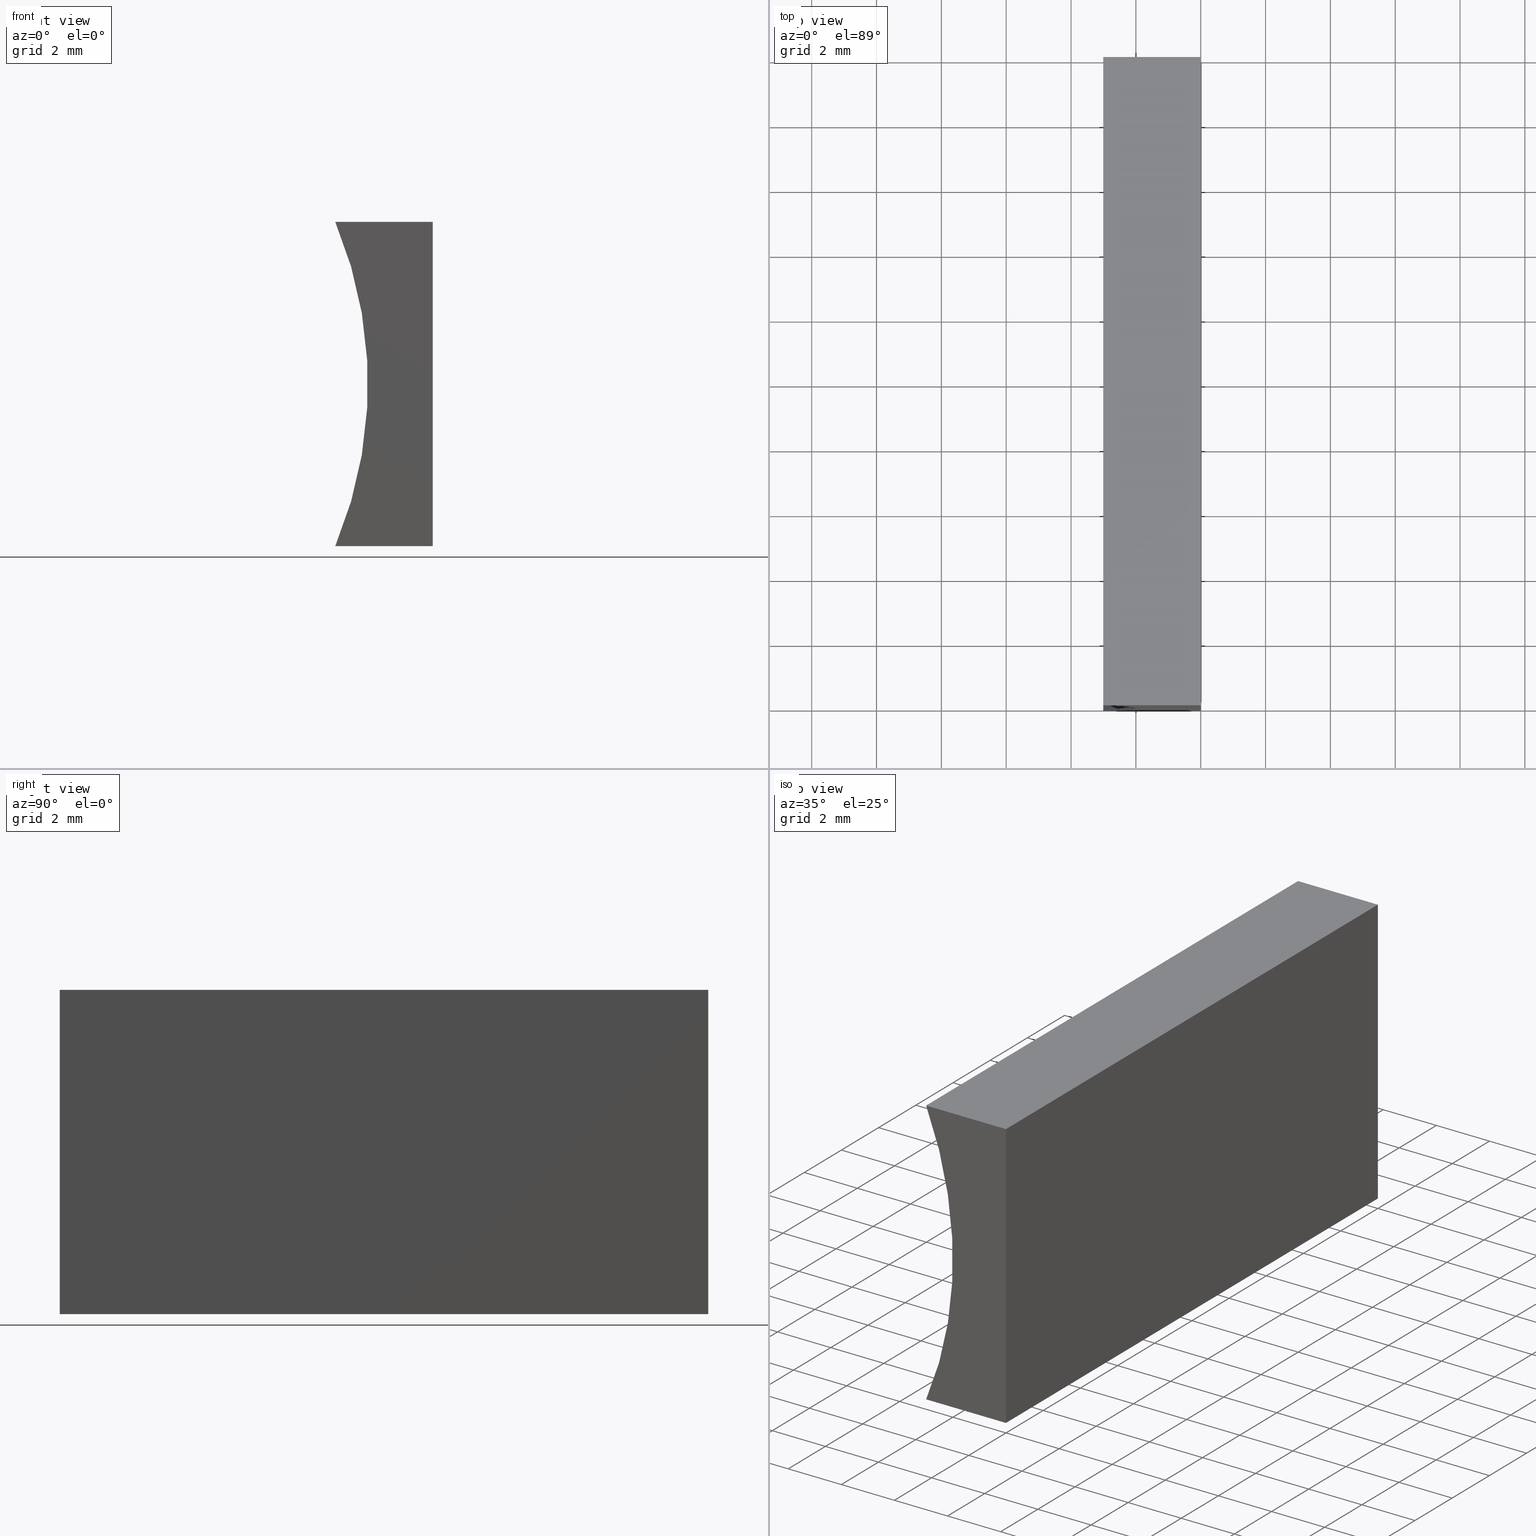
[diagram: canonical four-view strip — front | top / right | iso, engineering-drawing reading convention]
A machine part, canonical four-view strip (front | top / right | iso — engineering-drawing reading convention). The complete STEP part file that produces these views, byte-faithful:
ISO-10303-21;
HEADER;
FILE_DESCRIPTION (( 'STEP AP214' ),
    '1' );
FILE_NAME ('155343.STEP',
    '2019-06-28T02:30:09',
    ( 'user' ),
    ( '΢���й�' ),
    'SwSTEP 2.0',
    'SolidWorks 2016',
    '' );
FILE_SCHEMA (( 'AUTOMOTIVE_DESIGN' ));
ENDSEC;

DATA;
#1 = LINE ( 'NONE', #127, #135 ) ;
#2 =( LENGTH_UNIT ( ) NAMED_UNIT ( * ) SI_UNIT ( .MILLI., .METRE. ) );
#3 = VERTEX_POINT ( 'NONE', #53 ) ;
#4 = PRODUCT_CONTEXT ( 'NONE', #116, 'mechanical' ) ;
#5 = PRODUCT_DEFINITION_FORMATION_WITH_SPECIFIED_SOURCE ( '�κ�', '', #122, .NOT_KNOWN. ) ;
#6 = VERTEX_POINT ( 'NONE', #30 ) ;
#7 = FILL_AREA_STYLE_COLOUR ( '', #60 ) ;
#8 = MANIFOLD_SOLID_BREP ( '͹̨-����1', #182 ) ;
#9 = CARTESIAN_POINT ( 'NONE',  ( -14.93000000000000000, 0.0000000000000000000, 5.000000000000001800 ) ) ;
#10 = FACE_OUTER_BOUND ( 'NONE', #200, .T. ) ;
#11 = CARTESIAN_POINT ( 'NONE',  ( 0.0000000000000000000, 0.0000000000000000000, 0.0000000000000000000 ) ) ;
#12 = CARTESIAN_POINT ( 'NONE',  ( 0.0000000000000000000, 20.00000000000000000, 0.0000000000000000000 ) ) ;
#13 = AXIS2_PLACEMENT_3D ( 'NONE', #9, #179, #131 ) ;
#14 = DIRECTION ( 'NONE',  ( -1.000000000000000000, 0.0000000000000000000, -5.771121341056381500E-016 ) ) ;
#15 = CARTESIAN_POINT ( 'NONE',  ( 0.0000000000000000000, 0.0000000000000000000, 0.0000000000000000000 ) ) ;
#16 = ADVANCED_FACE ( 'NONE', ( #86 ), #114, .T. ) ;
#17 = VECTOR ( 'NONE', #14, 1000.000000000000000 ) ;
#18 = ADVANCED_FACE ( 'NONE', ( #73 ), #187, .F. ) ;
#19 = SURFACE_STYLE_USAGE ( .BOTH. , #20 ) ;
#20 = SURFACE_SIDE_STYLE ('',( #21 ) ) ;
#21 = SURFACE_STYLE_FILL_AREA ( #167 ) ;
#22 = VECTOR ( 'NONE', #32, 1000.000000000000000 ) ;
#23 = AXIS2_PLACEMENT_3D ( 'NONE', #55, #56, #141 ) ;
#24 = ORIENTED_EDGE ( 'NONE', *, *, #168, .F. ) ;
#25 =( NAMED_UNIT ( * ) PLANE_ANGLE_UNIT ( ) SI_UNIT ( $, .RADIAN. ) );
#26 = CIRCLE ( 'NONE', #154, 12.93000000000000300 ) ;
#27 = CARTESIAN_POINT ( 'NONE',  ( 6.123233995736766300E-016, 0.0000000000000000000, 10.00000000000000000 ) ) ;
#28 = PRODUCT_RELATED_PRODUCT_CATEGORY ( 'part', '', ( #122 ) ) ;
#29 = DIRECTION ( 'NONE',  ( -0.0000000000000000000, -1.000000000000000000, -0.0000000000000000000 ) ) ;
#30 = CARTESIAN_POINT ( 'NONE',  ( -3.005869004409587000, 0.0000000000000000000, -2.602085213965210600E-015 ) ) ;
#31 = ORIENTED_EDGE ( 'NONE', *, *, #69, .T. ) ;
#32 = DIRECTION ( 'NONE',  ( -6.123233995736766000E-017, -0.0000000000000000000, -1.000000000000000000 ) ) ;
#33 = ORIENTED_EDGE ( 'NONE', *, *, #36, .T. ) ;
#34 = PRESENTATION_LAYER_ASSIGNMENT (  '', '', ( #144 ) ) ;
#35 = ORIENTED_EDGE ( 'NONE', *, *, #204, .T. ) ;
#36 = EDGE_CURVE ( 'NONE', #6, #72, #202, .T. ) ;
#37 = ORIENTED_EDGE ( 'NONE', *, *, #61, .F. ) ;
#38 = FILL_AREA_STYLE_COLOUR ( '', #186 ) ;
#39 = DIRECTION ( 'NONE',  ( 1.000000000000000000, 0.0000000000000000000, 5.771121341056381500E-016 ) ) ;
#40 = SHAPE_DEFINITION_REPRESENTATION ( #137, #77 ) ;
#41 = DIRECTION ( 'NONE',  ( -5.771121341056383500E-016, 0.0000000000000000000, -1.000000000000000000 ) ) ;
#42 = CARTESIAN_POINT ( 'NONE',  ( 0.0000000000000000000, 20.00000000000000000, 0.0000000000000000000 ) ) ;
#43 = STYLED_ITEM ( 'NONE', ( #173 ), #77 ) ;
#44 = LINE ( 'NONE', #11, #22 ) ;
#45 = ADVANCED_FACE ( 'NONE', ( #76 ), #183, .F. ) ;
#46 = EDGE_CURVE ( 'NONE', #57, #6, #64, .T. ) ;
#47 = ORIENTED_EDGE ( 'NONE', *, *, #98, .F. ) ;
#48 = CARTESIAN_POINT ( 'NONE',  ( -3.005869004409586600, 20.00000000000000000, 10.00000000000000200 ) ) ;
#49 = DIRECTION ( 'NONE',  ( 0.0000000000000000000, 0.0000000000000000000, 1.000000000000000000 ) ) ;
#50 = APPLICATION_PROTOCOL_DEFINITION ( 'draft international standard', 'automotive_design', 1998, #125 ) ;
#51 = CARTESIAN_POINT ( 'NONE',  ( 0.0000000000000000000, 20.00000000000000000, 0.0000000000000000000 ) ) ;
#52 = LINE ( 'NONE', #51, #17 ) ;
#53 = CARTESIAN_POINT ( 'NONE',  ( -3.005869004409586600, 20.00000000000000000, 10.00000000000000200 ) ) ;
#54 = CARTESIAN_POINT ( 'NONE',  ( -3.005869004409586600, 0.0000000000000000000, 10.00000000000000200 ) ) ;
#55 = CARTESIAN_POINT ( 'NONE',  ( -14.93000000000000000, 20.00000000000000000, 5.000000000000001800 ) ) ;
#56 = DIRECTION ( 'NONE',  ( 0.0000000000000000000, 1.000000000000000000, 0.0000000000000000000 ) ) ;
#57 = VERTEX_POINT ( 'NONE', #15 ) ;
#58 = ADVANCED_FACE ( 'NONE', ( #115 ), #175, .F. ) ;
#59 = VECTOR ( 'NONE', #96, 1000.000000000000000 ) ;
#60 = COLOUR_RGB ( '',1.000000000000000000, 1.000000000000000000, 1.000000000000000000 ) ;
#61 = EDGE_CURVE ( 'NONE', #3, #157, #1, .T. ) ;
#62 = ADVANCED_FACE ( 'NONE', ( #10 ), #88, .F. ) ;
#63 = CARTESIAN_POINT ( 'NONE',  ( 6.123233995736766300E-016, 20.00000000000000000, 10.00000000000000000 ) ) ;
#64 = LINE ( 'NONE', #130, #81 ) ;
#65 = ORIENTED_EDGE ( 'NONE', *, *, #149, .T. ) ;
#66 = EDGE_LOOP ( 'NONE', ( #146, #24, #47, #87 ) ) ;
#67 = SURFACE_STYLE_FILL_AREA ( #75 ) ;
#68 = CARTESIAN_POINT ( 'NONE',  ( 0.0000000000000000000, 20.00000000000000000, 0.0000000000000000000 ) ) ;
#69 = EDGE_CURVE ( 'NONE', #95, #118, #52, .T. ) ;
#70 = DIRECTION ( 'NONE',  ( 0.0000000000000000000, -0.0000000000000000000, 1.000000000000000000 ) ) ;
#71 = CARTESIAN_POINT ( 'NONE',  ( 6.123233995736766300E-016, 0.0000000000000000000, 10.00000000000000000 ) ) ;
#72 = VERTEX_POINT ( 'NONE', #54 ) ;
#73 = FACE_OUTER_BOUND ( 'NONE', #180, .T. ) ;
#74 = AXIS2_PLACEMENT_3D ( 'NONE', #126, #152, #70 ) ;
#75 = FILL_AREA_STYLE ('',( #7 ) ) ;
#76 = FACE_OUTER_BOUND ( 'NONE', #66, .T. ) ;
#77 = ADVANCED_BREP_SHAPE_REPRESENTATION ( '155343', ( #8, #99 ), #185 ) ;
#78 = AXIS2_PLACEMENT_3D ( 'NONE', #68, #151, #39 ) ;
#79 = ORIENTED_EDGE ( 'NONE', *, *, #46, .T. ) ;
#80 = ADVANCED_FACE ( 'NONE', ( #172 ), #112, .F. ) ;
#81 = VECTOR ( 'NONE', #91, 1000.000000000000000 ) ;
#82 = DIRECTION ( 'NONE',  ( -0.0000000000000000000, -1.000000000000000000, -0.0000000000000000000 ) ) ;
#83 = DIRECTION ( 'NONE',  ( 0.0000000000000000000, 0.0000000000000000000, 1.000000000000000000 ) ) ;
#84 = UNCERTAINTY_MEASURE_WITH_UNIT (LENGTH_MEASURE( 1.000000000000000100E-005 ), #134, 'distance_accuracy_value', 'NONE');
#85 = MECHANICAL_DESIGN_GEOMETRIC_PRESENTATION_REPRESENTATION (  '', ( #43 ), #128 ) ;
#86 = FACE_OUTER_BOUND ( 'NONE', #160, .T. ) ;
#87 = ORIENTED_EDGE ( 'NONE', *, *, #36, .F. ) ;
#88 = PLANE ( 'NONE',  #78 ) ;
#89 = SURFACE_STYLE_USAGE ( .BOTH. , #156 ) ;
#90 =( NAMED_UNIT ( * ) PLANE_ANGLE_UNIT ( ) SI_UNIT ( $, .RADIAN. ) );
#91 = DIRECTION ( 'NONE',  ( -1.000000000000000000, 0.0000000000000000000, -5.771121341056381500E-016 ) ) ;
#92 = ORIENTED_EDGE ( 'NONE', *, *, #61, .T. ) ;
#93 = EDGE_CURVE ( 'NONE', #157, #95, #148, .T. ) ;
#94 = LINE ( 'NONE', #105, #129 ) ;
#95 = VERTEX_POINT ( 'NONE', #142 ) ;
#96 = DIRECTION ( 'NONE',  ( -0.0000000000000000000, -1.000000000000000000, -0.0000000000000000000 ) ) ;
#97 =( NAMED_UNIT ( * ) PLANE_ANGLE_UNIT ( ) SI_UNIT ( $, .RADIAN. ) );
#98 = EDGE_CURVE ( 'NONE', #72, #165, #145, .T. ) ;
#99 = AXIS2_PLACEMENT_3D ( 'NONE', #164, #49, #176 ) ;
#100 = ORIENTED_EDGE ( 'NONE', *, *, #93, .F. ) ;
#101 = EDGE_CURVE ( 'NONE', #95, #57, #189, .T. ) ;
#102 =( NAMED_UNIT ( * ) SI_UNIT ( $, .STERADIAN. ) SOLID_ANGLE_UNIT ( ) );
#103 = APPLICATION_PROTOCOL_DEFINITION ( 'draft international standard', 'automotive_design', 1998, #116 ) ;
#104 = VECTOR ( 'NONE', #120, 1000.000000000000000 ) ;
#105 = CARTESIAN_POINT ( 'NONE',  ( 6.123233995736766300E-016, 20.00000000000000000, 10.00000000000000000 ) ) ;
#106 = PRODUCT_DEFINITION ( 'δ֪', '', #5, #169 ) ;
#107 = DIRECTION ( 'NONE',  ( 0.0000000000000000000, 0.0000000000000000000, -1.000000000000000000 ) ) ;
#108 = EDGE_CURVE ( 'NONE', #118, #3, #26, .T. ) ;
#109 = VECTOR ( 'NONE', #188, 1000.000000000000000 ) ;
#110 = ORIENTED_EDGE ( 'NONE', *, *, #204, .F. ) ;
#111 = CARTESIAN_POINT ( 'NONE',  ( -14.93000000000000000, 20.00000000000000000, 5.000000000000001800 ) ) ;
#112 = PLANE ( 'NONE',  #161 ) ;
#113 = CARTESIAN_POINT ( 'NONE',  ( 6.123233995736766300E-016, 20.00000000000000000, 10.00000000000000000 ) ) ;
#114 = PLANE ( 'NONE',  #23 ) ;
#115 = FACE_OUTER_BOUND ( 'NONE', #190, .T. ) ;
#116 = APPLICATION_CONTEXT ( 'automotive_design' ) ;
#117 = UNCERTAINTY_MEASURE_WITH_UNIT (LENGTH_MEASURE( 1.000000000000000100E-005 ), #2, 'distance_accuracy_value', 'NONE');
#118 = VERTEX_POINT ( 'NONE', #163 ) ;
#119 = ORIENTED_EDGE ( 'NONE', *, *, #108, .T. ) ;
#120 = DIRECTION ( 'NONE',  ( -0.0000000000000000000, -1.000000000000000000, -0.0000000000000000000 ) ) ;
#121 = CARTESIAN_POINT ( 'NONE',  ( -3.005869004409587000, 20.00000000000000000, -2.602085213965210600E-015 ) ) ;
#122 = PRODUCT ( '155343', '155343', '', ( #4 ) ) ;
#123 = LINE ( 'NONE', #121, #59 ) ;
#124 = EDGE_LOOP ( 'NONE', ( #197, #132, #100, #65 ) ) ;
#125 = APPLICATION_CONTEXT ( 'automotive_design' ) ;
#126 = CARTESIAN_POINT ( 'NONE',  ( -14.93000000000000000, 0.0000000000000000000, 5.000000000000001800 ) ) ;
#127 = CARTESIAN_POINT ( 'NONE',  ( 6.123233995736766300E-016, 20.00000000000000000, 10.00000000000000000 ) ) ;
#128 =( GEOMETRIC_REPRESENTATION_CONTEXT ( 3 ) GLOBAL_UNCERTAINTY_ASSIGNED_CONTEXT ( ( #84 ) ) GLOBAL_UNIT_ASSIGNED_CONTEXT ( ( #134, #97, #102 ) ) REPRESENTATION_CONTEXT ( 'NONE', 'WORKASPACE' ) );
#129 = VECTOR ( 'NONE', #194, 1000.000000000000000 ) ;
#130 = CARTESIAN_POINT ( 'NONE',  ( 0.0000000000000000000, 0.0000000000000000000, 0.0000000000000000000 ) ) ;
#131 = DIRECTION ( 'NONE',  ( 0.0000000000000000000, 0.0000000000000000000, 1.000000000000000000 ) ) ;
#132 = ORIENTED_EDGE ( 'NONE', *, *, #101, .F. ) ;
#133 = ORIENTED_EDGE ( 'NONE', *, *, #98, .T. ) ;
#134 =( LENGTH_UNIT ( ) NAMED_UNIT ( * ) SI_UNIT ( .MILLI., .METRE. ) );
#135 = VECTOR ( 'NONE', #184, 1000.000000000000000 ) ;
#136 = ORIENTED_EDGE ( 'NONE', *, *, #93, .T. ) ;
#137 = PRODUCT_DEFINITION_SHAPE ( 'NONE', 'NONE',  #106 ) ;
#138 = LINE ( 'NONE', #48, #104 ) ;
#139 = AXIS2_PLACEMENT_3D ( 'NONE', #111, #198, #107 ) ;
#140 = VECTOR ( 'NONE', #29, 1000.000000000000000 ) ;
#141 = DIRECTION ( 'NONE',  ( 0.0000000000000000000, -0.0000000000000000000, 1.000000000000000000 ) ) ;
#142 = CARTESIAN_POINT ( 'NONE',  ( 0.0000000000000000000, 20.00000000000000000, 0.0000000000000000000 ) ) ;
#143 = DIRECTION ( 'NONE',  ( 6.123233995736766000E-017, 0.0000000000000000000, 1.000000000000000000 ) ) ;
#144 = STYLED_ITEM ( 'NONE', ( #192 ), #8 ) ;
#145 = LINE ( 'NONE', #71, #195 ) ;
#146 = ORIENTED_EDGE ( 'NONE', *, *, #46, .F. ) ;
#147 = PRESENTATION_LAYER_ASSIGNMENT (  '', '', ( #43 ) ) ;
#148 = LINE ( 'NONE', #153, #109 ) ;
#149 = EDGE_CURVE ( 'NONE', #157, #165, #94, .T. ) ;
#150 = UNCERTAINTY_MEASURE_WITH_UNIT (LENGTH_MEASURE( 1.000000000000000100E-005 ), #201, 'distance_accuracy_value', 'NONE');
#151 = DIRECTION ( 'NONE',  ( -5.771121341056381500E-016, 0.0000000000000000000, 1.000000000000000000 ) ) ;
#152 = DIRECTION ( 'NONE',  ( 0.0000000000000000000, 1.000000000000000000, 0.0000000000000000000 ) ) ;
#153 = CARTESIAN_POINT ( 'NONE',  ( 0.0000000000000000000, 20.00000000000000000, 0.0000000000000000000 ) ) ;
#154 = AXIS2_PLACEMENT_3D ( 'NONE', #177, #82, #83 ) ;
#155 = ORIENTED_EDGE ( 'NONE', *, *, #108, .F. ) ;
#156 = SURFACE_SIDE_STYLE ('',( #67 ) ) ;
#157 = VERTEX_POINT ( 'NONE', #63 ) ;
#158 = DIRECTION ( 'NONE',  ( 1.000000000000000000, -0.0000000000000000000, -5.771121341056383500E-016 ) ) ;
#159 = EDGE_CURVE ( 'NONE', #3, #72, #138, .T. ) ;
#160 = EDGE_LOOP ( 'NONE', ( #31, #119, #92, #136 ) ) ;
#161 = AXIS2_PLACEMENT_3D ( 'NONE', #12, #171, #143 ) ;
#162 = ORIENTED_EDGE ( 'NONE', *, *, #101, .T. ) ;
#163 = CARTESIAN_POINT ( 'NONE',  ( -3.005869004409587000, 20.00000000000000000, -2.602085213965210600E-015 ) ) ;
#164 = CARTESIAN_POINT ( 'NONE',  ( 0.0000000000000000000, 0.0000000000000000000, 0.0000000000000000000 ) ) ;
#165 = VERTEX_POINT ( 'NONE', #27 ) ;
#166 = ORIENTED_EDGE ( 'NONE', *, *, #159, .T. ) ;
#167 = FILL_AREA_STYLE ('',( #38 ) ) ;
#168 = EDGE_CURVE ( 'NONE', #165, #57, #44, .T. ) ;
#169 = PRODUCT_DEFINITION_CONTEXT ( 'detailed design', #125, 'design' ) ;
#170 =( NAMED_UNIT ( * ) SI_UNIT ( $, .STERADIAN. ) SOLID_ANGLE_UNIT ( ) );
#171 = DIRECTION ( 'NONE',  ( -1.000000000000000000, 0.0000000000000000000, 6.123233995736766000E-017 ) ) ;
#172 = FACE_OUTER_BOUND ( 'NONE', #124, .T. ) ;
#173 = PRESENTATION_STYLE_ASSIGNMENT (( #19 ) ) ;
#174 = ORIENTED_EDGE ( 'NONE', *, *, #159, .F. ) ;
#175 = CYLINDRICAL_SURFACE ( 'NONE', #139, 12.93000000000000000 ) ;
#176 = DIRECTION ( 'NONE',  ( 1.000000000000000000, 0.0000000000000000000, 0.0000000000000000000 ) ) ;
#177 = CARTESIAN_POINT ( 'NONE',  ( -14.93000000000000000, 20.00000000000000000, 5.000000000000001800 ) ) ;
#178 = MECHANICAL_DESIGN_GEOMETRIC_PRESENTATION_REPRESENTATION (  '', ( #144 ), #191 ) ;
#179 = DIRECTION ( 'NONE',  ( -0.0000000000000000000, -1.000000000000000000, -0.0000000000000000000 ) ) ;
#180 = EDGE_LOOP ( 'NONE', ( #133, #203, #37, #166 ) ) ;
#181 = DIRECTION ( 'NONE',  ( -1.000000000000000000, 0.0000000000000000000, 5.771121341056383500E-016 ) ) ;
#182 = CLOSED_SHELL ( 'NONE', ( #62, #58, #18, #80, #16, #45 ) ) ;
#183 = PLANE ( 'NONE',  #74 ) ;
#184 = DIRECTION ( 'NONE',  ( 1.000000000000000000, -0.0000000000000000000, -5.771121341056383500E-016 ) ) ;
#185 =( GEOMETRIC_REPRESENTATION_CONTEXT ( 3 ) GLOBAL_UNCERTAINTY_ASSIGNED_CONTEXT ( ( #117 ) ) GLOBAL_UNIT_ASSIGNED_CONTEXT ( ( #2, #25, #196 ) ) REPRESENTATION_CONTEXT ( 'NONE', 'WORKASPACE' ) );
#186 = COLOUR_RGB ( '',1.000000000000000000, 1.000000000000000000, 1.000000000000000000 ) ;
#187 = PLANE ( 'NONE',  #199 ) ;
#188 = DIRECTION ( 'NONE',  ( -6.123233995736766000E-017, -0.0000000000000000000, -1.000000000000000000 ) ) ;
#189 = LINE ( 'NONE', #42, #140 ) ;
#190 = EDGE_LOOP ( 'NONE', ( #33, #174, #155, #35 ) ) ;
#191 =( GEOMETRIC_REPRESENTATION_CONTEXT ( 3 ) GLOBAL_UNCERTAINTY_ASSIGNED_CONTEXT ( ( #150 ) ) GLOBAL_UNIT_ASSIGNED_CONTEXT ( ( #201, #90, #170 ) ) REPRESENTATION_CONTEXT ( 'NONE', 'WORKASPACE' ) );
#192 = PRESENTATION_STYLE_ASSIGNMENT (( #89 ) ) ;
#193 = ORIENTED_EDGE ( 'NONE', *, *, #69, .F. ) ;
#194 = DIRECTION ( 'NONE',  ( -0.0000000000000000000, -1.000000000000000000, -0.0000000000000000000 ) ) ;
#195 = VECTOR ( 'NONE', #158, 1000.000000000000000 ) ;
#196 =( NAMED_UNIT ( * ) SI_UNIT ( $, .STERADIAN. ) SOLID_ANGLE_UNIT ( ) );
#197 = ORIENTED_EDGE ( 'NONE', *, *, #168, .T. ) ;
#198 = DIRECTION ( 'NONE',  ( -0.0000000000000000000, -1.000000000000000000, -0.0000000000000000000 ) ) ;
#199 = AXIS2_PLACEMENT_3D ( 'NONE', #113, #41, #181 ) ;
#200 = EDGE_LOOP ( 'NONE', ( #79, #110, #193, #162 ) ) ;
#201 =( LENGTH_UNIT ( ) NAMED_UNIT ( * ) SI_UNIT ( .MILLI., .METRE. ) );
#202 = CIRCLE ( 'NONE', #13, 12.93000000000000300 ) ;
#203 = ORIENTED_EDGE ( 'NONE', *, *, #149, .F. ) ;
#204 = EDGE_CURVE ( 'NONE', #118, #6, #123, .T. ) ;
ENDSEC;
END-ISO-10303-21;
